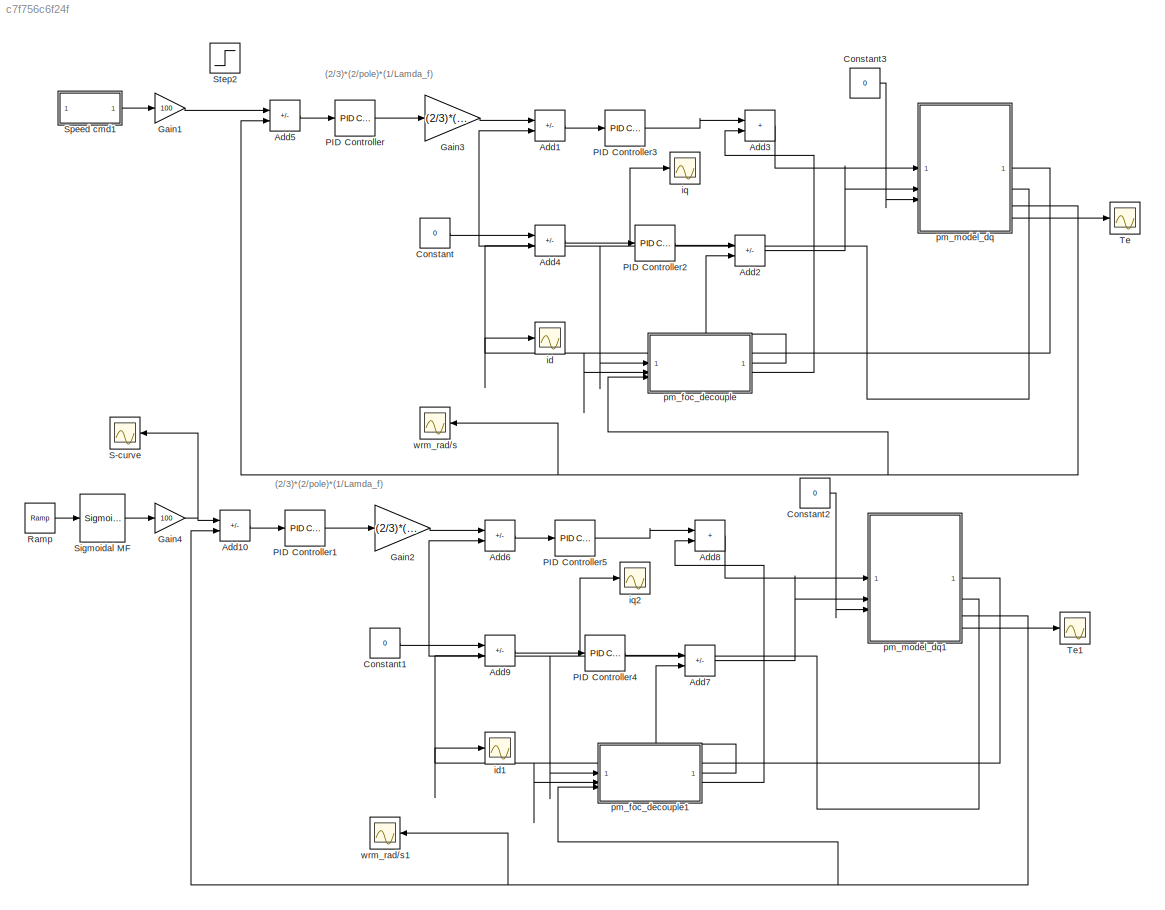
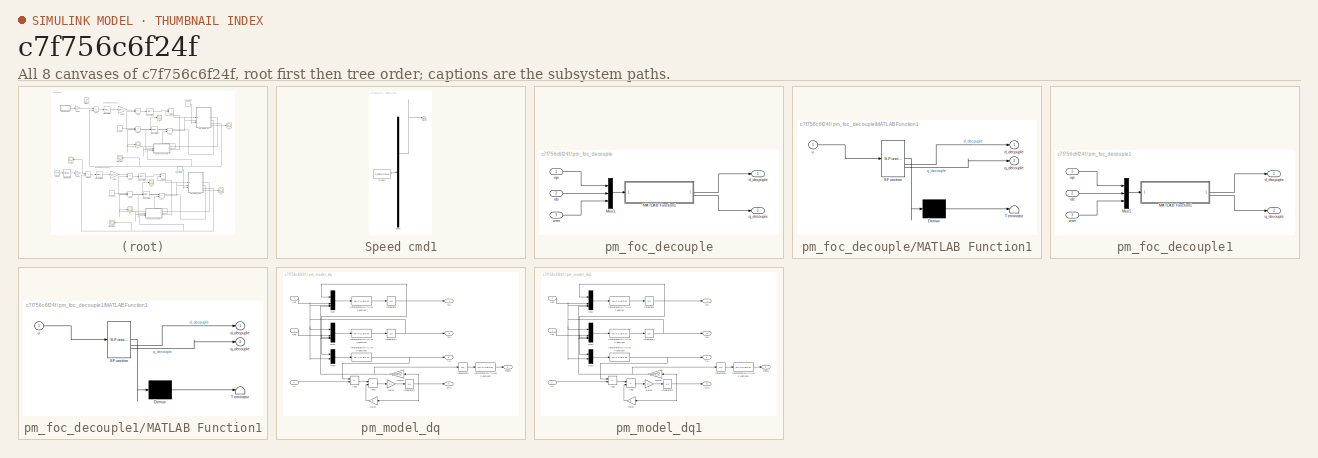
[diagram: thumbnail index - all 8 canvases of the model, root first then tree order]
MODEL slx_c7f756c6f24f
KIND model
CONFIG AbsTol = auto
CONFIG EnableMultiTasking = off
CONFIG FixedStep = 0.001
CONFIG MaxStep = auto
CONFIG MinStep = auto
CONFIG RelTol = 1e-3
CONFIG SampleTimeConstraint = Unconstrained
CONFIG SolverName = VariableStepAuto
CONFIG StartTime = 0.0
CONFIG StopTime = 0.5
BLOCK [Sum] Add1
  IconShape = rectangular
  Inputs = +-
BLOCK [Sum] Add10
  IconShape = rectangular
  Inputs = +-
BLOCK [Sum] Add2
  IconShape = rectangular
  Inputs = +-
BLOCK [Sum] Add3
  IconShape = rectangular
BLOCK [Sum] Add4
  IconShape = rectangular
  Inputs = +-
BLOCK [Sum] Add5
  IconShape = rectangular
  Inputs = +-
BLOCK [Sum] Add6
  IconShape = rectangular
  Inputs = +-
BLOCK [Sum] Add7
  IconShape = rectangular
  Inputs = +-
BLOCK [Sum] Add8
  IconShape = rectangular
BLOCK [Sum] Add9
  IconShape = rectangular
  Inputs = +-
BLOCK [Constant] Constant
  Value = 0
BLOCK [Constant] Constant1
  Value = 0
BLOCK [Constant] Constant2
  Value = 0
BLOCK [Constant] Constant3
  Value = 0
BLOCK [Gain] Gain1
  Gain = 100
BLOCK [Gain] Gain2
  Gain = (2/3)*(2/pole)*(1/Lamda_f)
BLOCK [Gain] Gain3
  Gain = (2/3)*(2/pole)*(1/Lamda_f)
BLOCK [Gain] Gain4
  Gain = 100
BLOCK [Reference] PID Controller  REF=slpidlib/PID Controller
  LibrarySourceBlock = simulink/Continuous/PID Controller
  SourceBlock = slpidlib/PID Controller
  SourceType = PID 1dof
BLOCK [Reference] PID Controller1  REF=slpidlib/PID Controller
  LibrarySourceBlock = simulink/Continuous/PID Controller
  SourceBlock = slpidlib/PID Controller
  SourceType = PID 1dof
BLOCK [Reference] PID Controller2  REF=slpidlib/PID Controller
  LibrarySourceBlock = simulink/Continuous/PID Controller
  SourceBlock = slpidlib/PID Controller
  SourceType = PID 1dof
BLOCK [Reference] PID Controller3  REF=slpidlib/PID Controller
  LibrarySourceBlock = simulink/Continuous/PID Controller
  SourceBlock = slpidlib/PID Controller
  SourceType = PID 1dof
BLOCK [Reference] PID Controller4  REF=slpidlib/PID Controller
  LibrarySourceBlock = simulink/Continuous/PID Controller
  SourceBlock = slpidlib/PID Controller
  SourceType = PID 1dof
BLOCK [Reference] PID Controller5  REF=slpidlib/PID Controller
  LibrarySourceBlock = simulink/Continuous/PID Controller
  SourceBlock = slpidlib/PID Controller
  SourceType = PID 1dof
BLOCK [Reference] Ramp  REF=simulink/Sources/Ramp
  SourceBlock = simulink/Sources/Ramp
  SourceType = Ramp
BLOCK [Scope] S-curve
  Floating = off
  NameLocation = top
  NumInputPorts = 1
  ScopeSpecificationString = Simulink.scopes.TimeScopeBlockCfg('CurrentConfiguration', extmgr.ConfigurationSet(extmgr.Configuration('Core','General UI',true,'FigureColor',[1 1 1]),extmgr.Configuration('Core','Source UI',true),extmgr.Configuration('Sources','WiredSimulink',true,'DataLoggingVariableName','ScopeData1'),extmgr.Configuration('Visuals','Time Domain',true,'SerializedDisplays',{struct('MinYLimReal','-12.49489','MaxYL...<+1567ch>
BLOCK [Reference] Sigmoidal MF  REF=fuzblock/Membership   (lib defined in mdl_858b3b3e7478)
Functions/Sigmoidal MF
  SourceBlock = fuzblock/Membership \nFunctions/Sigmoidal MF
  SourceType = Sigmoidal membership function
BLOCK [SubSystem] Speed cmd1
  ClipboardFcn = sigbuilder_block('clipboard');
  CloseFcn = sigbuilder_block('close');
  ContinueFcn = sigbuilder_block('continue');
  CopyFcn = sigbuilder_block('copy');
  DeleteFcn = sigbuilder_block('delete');
  LoadFcn = sigbuilder_block('load');
  MaskHideContents = on
  ModelCloseFcn = sigbuilder_block('modelClose');
  NameChangeFcn = sigbuilder_block('namechange');
  OpenFcn = sigbuilder_block('open',[437.6 199.2 550.4 400 ]);
  PauseFcn = sigbuilder_block('pause');
  PreSaveFcn = sigbuilder_block('preSave');
  StartFcn = sigbuilder_block('start');
  StopFcn = sigbuilder_block('stop');
  Tag = STV Subsys
BLOCK [Demux] Speed cmd1/Demux
  DisplayOption = none
  Outputs = 1
  Tag = STV Demux
BLOCK [FromWorkspace] Speed cmd1/FromWs
  Tag = STV FromWs
  VariableName = tuvar
BLOCK [Outport] Speed cmd1/Signal 1
  Tag = STV Outport
BLOCK [Step] Step2
  After = 100
  SampleTime = 0
  Time = 0
BLOCK [Scope] Te
  Floating = off
  NumInputPorts = 1
  ScopeSpecificationString = Simulink.scopes.TimeScopeBlockCfg('CurrentConfiguration', extmgr.ConfigurationSet(extmgr.Configuration('Core','General UI',true,'FigureColor',[1 1 1]),extmgr.Configuration('Core','Source UI',true),extmgr.Configuration('Sources','WiredSimulink',true,'DataLoggingVariableName','ScopeData1'),extmgr.Configuration('Visuals','Time Domain',true,'SerializedDisplays',{struct('MinYLimReal','-0.01328','MaxYLi...<+1565ch>
BLOCK [Scope] Te1
  Floating = off
  NumInputPorts = 1
  ScopeSpecificationString = Simulink.scopes.TimeScopeBlockCfg('CurrentConfiguration', extmgr.ConfigurationSet(extmgr.Configuration('Core','General UI',true,'FigureColor',[1 1 1]),extmgr.Configuration('Core','Source UI',true),extmgr.Configuration('Sources','WiredSimulink',true,'DataLoggingVariableName','ScopeData2'),extmgr.Configuration('Visuals','Time Domain',true,'SerializedDisplays',{struct('MinYLimReal','-0.25916','MaxYLi...<+1565ch>
BLOCK [Scope] id
  Floating = off
  NumInputPorts = 1
  ScopeSpecificationString = Simulink.scopes.TimeScopeBlockCfg('CurrentConfiguration', extmgr.ConfigurationSet(extmgr.Configuration('Core','General UI',true,'FigureColor',[1 1 1]),extmgr.Configuration('Core','Source UI',true),extmgr.Configuration('Sources','WiredSimulink',true,'DataLoggingVariableName','ScopeData4'),extmgr.Configuration('Visuals','Time Domain',true,'SerializedDisplays',{struct('MinYLimReal','-1','MaxYLimReal'...<+1589ch>
BLOCK [Scope] id1
  Floating = off
  NumInputPorts = 1
  ScopeSpecificationString = Simulink.scopes.TimeScopeBlockCfg('CurrentConfiguration', extmgr.ConfigurationSet(extmgr.Configuration('Core','General UI',true,'FigureColor',[1 1 1]),extmgr.Configuration('Core','Source UI',true),extmgr.Configuration('Sources','WiredSimulink',true,'DataLoggingVariableName','ScopeData3'),extmgr.Configuration('Visuals','Time Domain',true,'SerializedDisplays',{struct('MinYLimReal','-1','MaxYLimReal'...<+1589ch>
BLOCK [Scope] iq
  Floating = off
  NumInputPorts = 1
  ScopeSpecificationString = Simulink.scopes.TimeScopeBlockCfg('CurrentConfiguration', extmgr.ConfigurationSet(extmgr.Configuration('Core','General UI',true,'FigureColor',[1 1 1]),extmgr.Configuration('Core','Source UI',true),extmgr.Configuration('Sources','WiredSimulink',true,'DataLoggingVariableName','ScopeData1'),extmgr.Configuration('Visuals','Time Domain',true,'SerializedDisplays',{struct('MinYLimReal','-0.14752','MaxYLi...<+1565ch>
BLOCK [Scope] iq2
  Floating = off
  NumInputPorts = 1
  ScopeSpecificationString = Simulink.scopes.TimeScopeBlockCfg('CurrentConfiguration', extmgr.ConfigurationSet(extmgr.Configuration('Core','General UI',true,'FigureColor',[1 1 1]),extmgr.Configuration('Core','Source UI',true),extmgr.Configuration('Sources','WiredSimulink',true,'DataLoggingVariableName','ScopeData4'),extmgr.Configuration('Visuals','Time Domain',true,'SerializedDisplays',{struct('MinYLimReal','-0.49266','MaxYLi...<+1566ch>
BLOCK [SubSystem] pm_foc_decouple
BLOCK [SubSystem] pm_foc_decouple/MATLAB Function1
  ErrorFcn = Stateflow.Translate.translate
  LibrarySourceBlock = simulink/User-Defined\nFunctions/MATLAB Function
  PermitHierarchicalResolution = ExplicitOnly
  SFBlockType = MATLAB Function
  TreatAsAtomicUnit = on
BLOCK [Demux] pm_foc_decouple/MATLAB Function1/ Demux 
  Outputs = 1
BLOCK [S-Function] pm_foc_decouple/MATLAB Function1/ SFunction 
  EnableBusSupport = on
  FunctionName = sf_sfun
  PortCounts = [1 3]
  SFcnIsStateOwnerBlock = off
  SFunctionDeploymentMode = off
  Tag = Stateflow S-Function 2
BLOCK [Terminator] pm_foc_decouple/MATLAB Function1/ Terminator 
BLOCK [Outport] pm_foc_decouple/MATLAB Function1/d_decpuple
BLOCK [Outport] pm_foc_decouple/MATLAB Function1/q_decouple
  Port = 2
BLOCK [Inport] pm_foc_decouple/MATLAB Function1/u
BLOCK [Mux] pm_foc_decouple/Mux1
  DisplayOption = bar
  Inputs = 3
BLOCK [Outport] pm_foc_decouple/d_decpuple
BLOCK [Inport] pm_foc_decouple/ids
  Port = 2
BLOCK [Inport] pm_foc_decouple/iqs
BLOCK [Outport] pm_foc_decouple/q_decouple
  Port = 2
BLOCK [Inport] pm_foc_decouple/wrm
  Port = 3
BLOCK [SubSystem] pm_foc_decouple1
BLOCK [SubSystem] pm_foc_decouple1/MATLAB Function1
  ErrorFcn = Stateflow.Translate.translate
  LibrarySourceBlock = simulink/User-Defined\nFunctions/MATLAB Function
  PermitHierarchicalResolution = ExplicitOnly
  SFBlockType = MATLAB Function
  TreatAsAtomicUnit = on
BLOCK [Demux] pm_foc_decouple1/MATLAB Function1/ Demux 
  Outputs = 1
BLOCK [S-Function] pm_foc_decouple1/MATLAB Function1/ SFunction 
  EnableBusSupport = on
  FunctionName = sf_sfun
  PortCounts = [1 3]
  SFcnIsStateOwnerBlock = off
  SFunctionDeploymentMode = off
  Tag = Stateflow S-Function 1
BLOCK [Terminator] pm_foc_decouple1/MATLAB Function1/ Terminator 
BLOCK [Outport] pm_foc_decouple1/MATLAB Function1/d_decpuple
BLOCK [Outport] pm_foc_decouple1/MATLAB Function1/q_decouple
  Port = 2
BLOCK [Inport] pm_foc_decouple1/MATLAB Function1/u
BLOCK [Mux] pm_foc_decouple1/Mux1
  DisplayOption = bar
  Inputs = 3
BLOCK [Outport] pm_foc_decouple1/d_decpuple
BLOCK [Inport] pm_foc_decouple1/ids
  Port = 2
BLOCK [Inport] pm_foc_decouple1/iqs
BLOCK [Outport] pm_foc_decouple1/q_decouple
  Port = 2
BLOCK [Inport] pm_foc_decouple1/wrm
  Port = 3
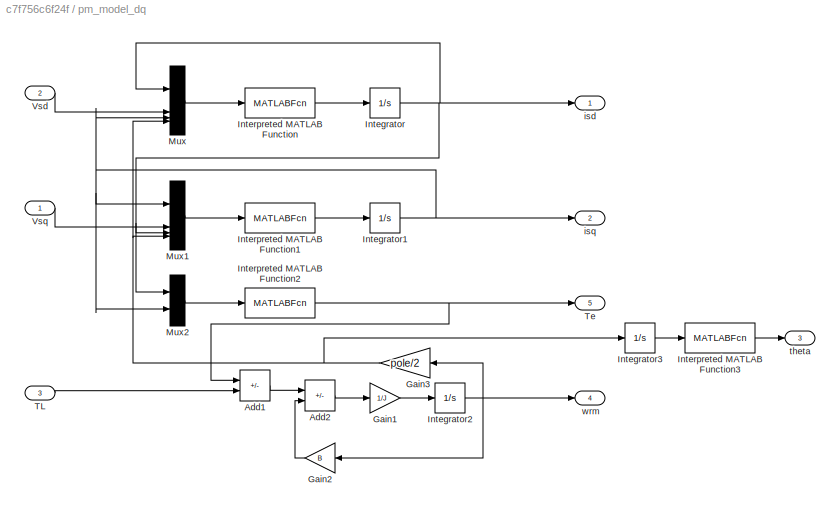
BLOCK [SubSystem] pm_model_dq
BLOCK [Sum] pm_model_dq/Add1
  IconShape = rectangular
  Inputs = +-
BLOCK [Sum] pm_model_dq/Add2
  IconShape = rectangular
  Inputs = +-
BLOCK [Gain] pm_model_dq/Gain1
  Gain = 1/J
BLOCK [Gain] pm_model_dq/Gain2
  Gain = B
  NameLocation = top
BLOCK [Gain] pm_model_dq/Gain3
  Gain = pole/2
BLOCK [Integrator] pm_model_dq/Integrator
BLOCK [Integrator] pm_model_dq/Integrator1
BLOCK [Integrator] pm_model_dq/Integrator2
BLOCK [Integrator] pm_model_dq/Integrator3
BLOCK [MATLABFcn] pm_model_dq/Interpreted MATLAB Function
  MATLABFcn = -(Rs/Ld)*u(1) + (Lq/Ld)*u(3)*u(4) + u(2)/Ld
BLOCK [MATLABFcn] pm_model_dq/Interpreted MATLAB Function1
  MATLABFcn = -(Rs/Lq)*u(1) - (Ld/Lq)*u(3)*u(4) - (Lamda_f/Lq)*u(4) + u(2)/Lq
BLOCK [MATLABFcn] pm_model_dq/Interpreted MATLAB Function2
  MATLABFcn = 3/2*(pole/2)*(Lamda_f*u(2) + (Ld-Lq)*u(1)*u(2))
BLOCK [MATLABFcn] pm_model_dq/Interpreted MATLAB Function3
  MATLABFcn = mod(u, 2*pi)
BLOCK [Mux] pm_model_dq/Mux
  DisplayOption = bar
BLOCK [Mux] pm_model_dq/Mux1
  DisplayOption = bar
BLOCK [Mux] pm_model_dq/Mux2
  DisplayOption = bar
  Inputs = 2
BLOCK [Inport] pm_model_dq/TL
  Port = 3
BLOCK [Outport] pm_model_dq/Te
  Port = 5
BLOCK [Inport] pm_model_dq/Vsd
  Port = 2
BLOCK [Inport] pm_model_dq/Vsq
BLOCK [Outport] pm_model_dq/isd
BLOCK [Outport] pm_model_dq/isq
  Port = 2
BLOCK [Outport] pm_model_dq/theta
  Port = 3
BLOCK [Outport] pm_model_dq/wrm
  Port = 4
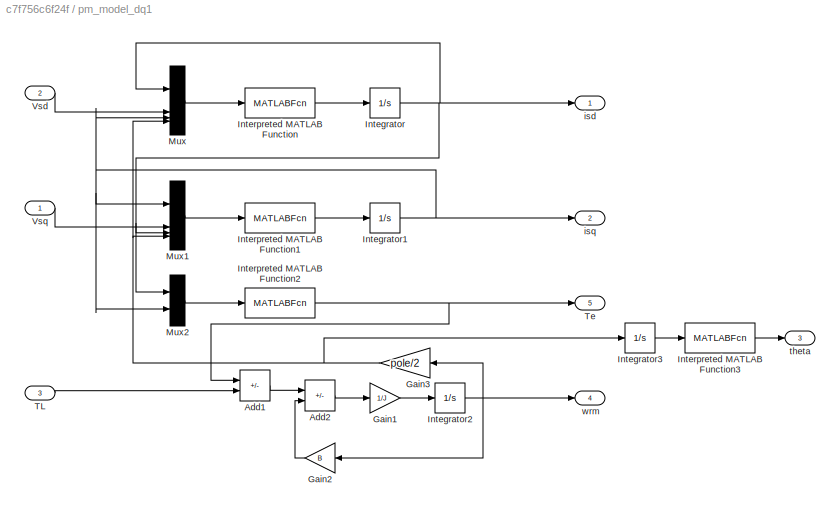
BLOCK [SubSystem] pm_model_dq1
BLOCK [Sum] pm_model_dq1/Add1
  IconShape = rectangular
  Inputs = +-
BLOCK [Sum] pm_model_dq1/Add2
  IconShape = rectangular
  Inputs = +-
BLOCK [Gain] pm_model_dq1/Gain1
  Gain = 1/J
BLOCK [Gain] pm_model_dq1/Gain2
  Gain = B
  NameLocation = top
BLOCK [Gain] pm_model_dq1/Gain3
  Gain = pole/2
BLOCK [Integrator] pm_model_dq1/Integrator
BLOCK [Integrator] pm_model_dq1/Integrator1
BLOCK [Integrator] pm_model_dq1/Integrator2
BLOCK [Integrator] pm_model_dq1/Integrator3
BLOCK [MATLABFcn] pm_model_dq1/Interpreted MATLAB Function
  MATLABFcn = -(Rs/Ld)*u(1) + (Lq/Ld)*u(3)*u(4) + u(2)/Ld
BLOCK [MATLABFcn] pm_model_dq1/Interpreted MATLAB Function1
  MATLABFcn = -(Rs/Lq)*u(1) - (Ld/Lq)*u(3)*u(4) - (Lamda_f/Lq)*u(4) + u(2)/Lq
BLOCK [MATLABFcn] pm_model_dq1/Interpreted MATLAB Function2
  MATLABFcn = 3/2*(pole/2)*(Lamda_f*u(2) + (Ld-Lq)*u(1)*u(2))
BLOCK [MATLABFcn] pm_model_dq1/Interpreted MATLAB Function3
  MATLABFcn = mod(u, 2*pi)
BLOCK [Mux] pm_model_dq1/Mux
  DisplayOption = bar
BLOCK [Mux] pm_model_dq1/Mux1
  DisplayOption = bar
BLOCK [Mux] pm_model_dq1/Mux2
  DisplayOption = bar
  Inputs = 2
BLOCK [Inport] pm_model_dq1/TL
  Port = 3
BLOCK [Outport] pm_model_dq1/Te
  Port = 5
BLOCK [Inport] pm_model_dq1/Vsd
  Port = 2
BLOCK [Inport] pm_model_dq1/Vsq
BLOCK [Outport] pm_model_dq1/isd
BLOCK [Outport] pm_model_dq1/isq
  Port = 2
BLOCK [Outport] pm_model_dq1/theta
  Port = 3
BLOCK [Outport] pm_model_dq1/wrm
  Port = 4
BLOCK [Scope] wrm_rad//s
  Floating = off
  NameLocation = top
  NumInputPorts = 1
  ScopeSpecificationString = Simulink.scopes.TimeScopeBlockCfg('CurrentConfiguration', extmgr.ConfigurationSet(extmgr.Configuration('Core','General UI',true,'FigureColor',[1 1 1]),extmgr.Configuration('Core','Source UI',true),extmgr.Configuration('Sources','WiredSimulink',true),extmgr.Configuration('Visuals','Time Domain',true,'SerializedDisplays',{struct('MinYLimReal','-12.50045','MaxYLimReal','112.50404','YLabelReal','','Mi...<+1536ch>
BLOCK [Scope] wrm_rad//s1
  Floating = off
  NameLocation = top
  NumInputPorts = 1
  ScopeSpecificationString = Simulink.scopes.TimeScopeBlockCfg('CurrentConfiguration', extmgr.ConfigurationSet(extmgr.Configuration('Core','General UI',true,'FigureColor',[1 1 1]),extmgr.Configuration('Core','Source UI',true),extmgr.Configuration('Sources','WiredSimulink',true,'DataLoggingVariableName','ScopeData5'),extmgr.Configuration('Visuals','Time Domain',true,'SerializedDisplays',{struct('MinYLimReal','-12.5024','MaxYLi...<+1570ch>
ANNOTATION (root): (2/3)*(2/pole)*(1/Lamda_f)
LINE Add10:1 -> PID Controller1:1
LINE Add1:1 -> PID Controller3:1
LINE Add2:1 -> pm_model_dq:2
LINE Add3:1 -> pm_model_dq:1
LINE Add4:1 -> PID Controller2:1
LINE Add5:1 -> PID Controller:1
LINE Add6:1 -> PID Controller5:1
LINE Add7:1 -> pm_model_dq1:2
LINE Add8:1 -> pm_model_dq1:1
LINE Add9:1 -> PID Controller4:1
LINE Constant1:1 -> Add9:1
LINE Constant2:1 -> pm_model_dq1:3
LINE Constant3:1 -> pm_model_dq:3
LINE Constant:1 -> Add4:1
LINE Gain1:1 -> Add5:1
LINE Gain2:1 -> Add6:1
LINE Gain3:1 -> Add1:1
NET Gain4:1 -> Add10:1, S-curve:1
LINE PID Controller1:1 -> Gain2:1
LINE PID Controller2:1 -> Add2:1
LINE PID Controller3:1 -> Add3:1
LINE PID Controller4:1 -> Add7:1
LINE PID Controller5:1 -> Add8:1
LINE PID Controller:1 -> Gain3:1
LINE Ramp:1 -> Sigmoidal MF:1
LINE Sigmoidal MF:1 -> Gain4:1
LINE Speed cmd1:1 -> Gain1:1
LINE pm_foc_decouple/MATLAB Function1:1 -> pm_foc_decouple/d_decpuple:1
LINE pm_foc_decouple/MATLAB Function1:2 -> pm_foc_decouple/q_decouple:1
LINE pm_foc_decouple/Mux1:1 -> pm_foc_decouple/MATLAB Function1:1
LINE pm_foc_decouple/ids:1 -> pm_foc_decouple/Mux1:2
LINE pm_foc_decouple/iqs:1 -> pm_foc_decouple/Mux1:1
LINE pm_foc_decouple/wrm:1 -> pm_foc_decouple/Mux1:3
LINE pm_foc_decouple1/MATLAB Function1:1 -> pm_foc_decouple1/d_decpuple:1
LINE pm_foc_decouple1/MATLAB Function1:2 -> pm_foc_decouple1/q_decouple:1
LINE pm_foc_decouple1/Mux1:1 -> pm_foc_decouple1/MATLAB Function1:1
LINE pm_foc_decouple1/ids:1 -> pm_foc_decouple1/Mux1:2
LINE pm_foc_decouple1/iqs:1 -> pm_foc_decouple1/Mux1:1
LINE pm_foc_decouple1/wrm:1 -> pm_foc_decouple1/Mux1:3
LINE pm_foc_decouple1:1 -> Add7:2
LINE pm_foc_decouple1:2 -> Add8:2
LINE pm_foc_decouple:1 -> Add2:2
LINE pm_foc_decouple:2 -> Add3:2
LINE pm_model_dq/Add1:1 -> pm_model_dq/Add2:1
LINE pm_model_dq/Add2:1 -> pm_model_dq/Gain1:1
LINE pm_model_dq/Gain1:1 -> pm_model_dq/Integrator2:1
LINE pm_model_dq/Gain2:1 -> pm_model_dq/Add2:2
NET pm_model_dq/Gain3:1 -> pm_model_dq/Integrator3:1, pm_model_dq/Mux1:4, pm_model_dq/Mux:4
NET pm_model_dq/Integrator1:1 -> pm_model_dq/Mux1:1, pm_model_dq/Mux2:2, pm_model_dq/Mux:3, pm_model_dq/isq:1
NET pm_model_dq/Integrator2:1 -> pm_model_dq/Gain2:1, pm_model_dq/Gain3:1, pm_model_dq/wrm:1
LINE pm_model_dq/Integrator3:1 -> pm_model_dq/Interpreted MATLAB Function3:1
NET pm_model_dq/Integrator:1 -> pm_model_dq/Mux1:3, pm_model_dq/Mux2:1, pm_model_dq/Mux:1, pm_model_dq/isd:1
LINE pm_model_dq/Interpreted MATLAB Function1:1 -> pm_model_dq/Integrator1:1
NET pm_model_dq/Interpreted MATLAB Function2:1 -> pm_model_dq/Add1:1, pm_model_dq/Te:1
LINE pm_model_dq/Interpreted MATLAB Function3:1 -> pm_model_dq/theta:1
LINE pm_model_dq/Interpreted MATLAB Function:1 -> pm_model_dq/Integrator:1
LINE pm_model_dq/Mux1:1 -> pm_model_dq/Interpreted MATLAB Function1:1
LINE pm_model_dq/Mux2:1 -> pm_model_dq/Interpreted MATLAB Function2:1
LINE pm_model_dq/Mux:1 -> pm_model_dq/Interpreted MATLAB Function:1
LINE pm_model_dq/TL:1 -> pm_model_dq/Add1:2
LINE pm_model_dq/Vsd:1 -> pm_model_dq/Mux:2
LINE pm_model_dq/Vsq:1 -> pm_model_dq/Mux1:2
LINE pm_model_dq1/Add1:1 -> pm_model_dq1/Add2:1
LINE pm_model_dq1/Add2:1 -> pm_model_dq1/Gain1:1
LINE pm_model_dq1/Gain1:1 -> pm_model_dq1/Integrator2:1
LINE pm_model_dq1/Gain2:1 -> pm_model_dq1/Add2:2
NET pm_model_dq1/Gain3:1 -> pm_model_dq1/Integrator3:1, pm_model_dq1/Mux1:4, pm_model_dq1/Mux:4
NET pm_model_dq1/Integrator1:1 -> pm_model_dq1/Mux1:1, pm_model_dq1/Mux2:2, pm_model_dq1/Mux:3, pm_model_dq1/isq:1
NET pm_model_dq1/Integrator2:1 -> pm_model_dq1/Gain2:1, pm_model_dq1/Gain3:1, pm_model_dq1/wrm:1
LINE pm_model_dq1/Integrator3:1 -> pm_model_dq1/Interpreted MATLAB Function3:1
NET pm_model_dq1/Integrator:1 -> pm_model_dq1/Mux1:3, pm_model_dq1/Mux2:1, pm_model_dq1/Mux:1, pm_model_dq1/isd:1
LINE pm_model_dq1/Interpreted MATLAB Function1:1 -> pm_model_dq1/Integrator1:1
NET pm_model_dq1/Interpreted MATLAB Function2:1 -> pm_model_dq1/Add1:1, pm_model_dq1/Te:1
LINE pm_model_dq1/Interpreted MATLAB Function3:1 -> pm_model_dq1/theta:1
LINE pm_model_dq1/Interpreted MATLAB Function:1 -> pm_model_dq1/Integrator:1
LINE pm_model_dq1/Mux1:1 -> pm_model_dq1/Interpreted MATLAB Function1:1
LINE pm_model_dq1/Mux2:1 -> pm_model_dq1/Interpreted MATLAB Function2:1
LINE pm_model_dq1/Mux:1 -> pm_model_dq1/Interpreted MATLAB Function:1
LINE pm_model_dq1/TL:1 -> pm_model_dq1/Add1:2
LINE pm_model_dq1/Vsd:1 -> pm_model_dq1/Mux:2
LINE pm_model_dq1/Vsq:1 -> pm_model_dq1/Mux1:2
NET pm_model_dq1:1 -> Add9:2, id1:1, pm_foc_decouple1:2
NET pm_model_dq1:2 -> Add6:2, iq2:1, pm_foc_decouple1:1
NET pm_model_dq1:4 -> Add10:2, pm_foc_decouple1:3, wrm_rad//s1:1
LINE pm_model_dq1:5 -> Te1:1
NET pm_model_dq:1 -> Add4:2, id:1, pm_foc_decouple:2
NET pm_model_dq:2 -> Add1:2, iq:1, pm_foc_decouple:1
NET pm_model_dq:4 -> Add5:2, pm_foc_decouple:3, wrm_rad//s:1
LINE pm_model_dq:5 -> Te:1
note: NET lines group one-source signal fan-out (src -> all destinations, sorted); 1:1 wires keep LINE
CHART pm_foc_decouple/MATLAB Function1 states=1 transitions=1
  STATE_LABEL 'eML_blk_kernel()'
  STATE_LABEL 'SCRIPT:\nfunction [d_decpuple, q_decouple] = decouple(u)\n    Ld = 0.0057;\n    Lq = 0.0125;\n    Lamda_f = 0.03;\n    pole=4;\n    wr = u(3)*pole/2;\n    d_decpuple = Ld*(wr*(Lq/Ld)*u(1));\n    q_decouple = Lq*(wr*(Ld*u(2)+Lamda_f)/Lq);'
CHART pm_foc_decouple1/MATLAB Function1 states=1 transitions=1
  STATE_LABEL 'eML_blk_kernel()'
  STATE_LABEL 'SCRIPT:\nfunction [d_decpuple, q_decouple] = decouple(u)\n    Ld = 0.0057;\n    Lq = 0.0125;\n    Lamda_f = 0.03;\n    pole=4;\n    wr = u(3)*pole/2;\n    d_decpuple = Ld*(wr*(Lq/Ld)*u(1));\n    q_decouple = Lq*(wr*(Ld*u(2)+Lamda_f)/Lq);'
CHART  states=0 transitions=0
CHART  states=0 transitions=0
